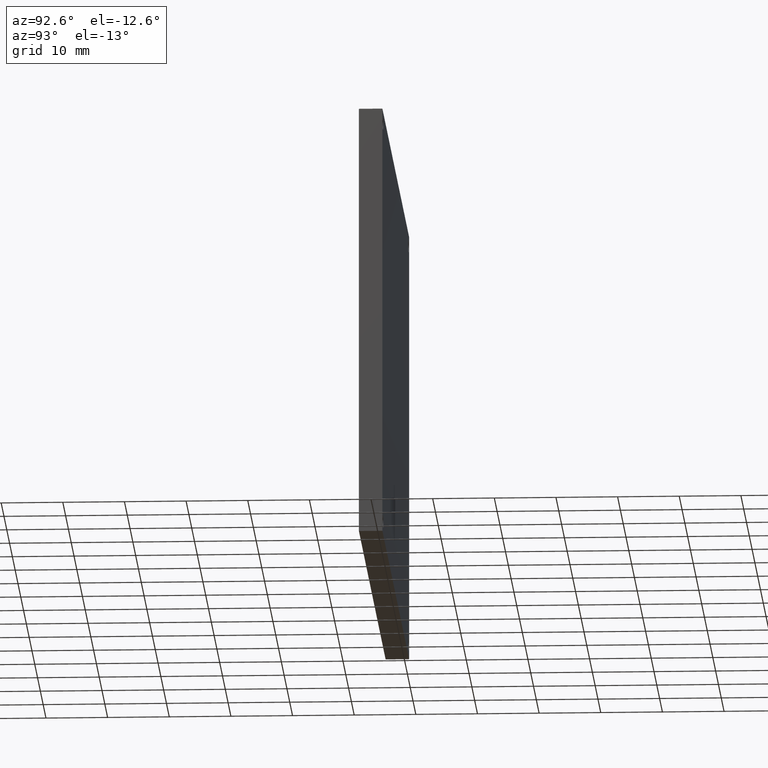
[diagram: clean part render]
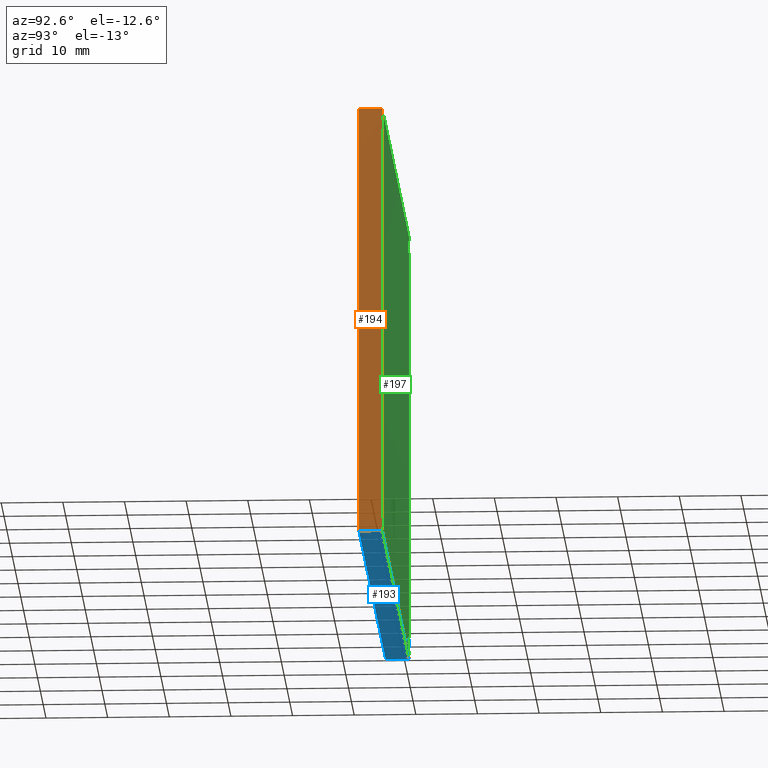
[diagram: same view with three faces highlighted in distinct colors, each labeled with its STEP entity id]
A machine part, auxiliary view with three faces highlighted in distinct colors.
Their STEP definitions:

[orange] entity #194 — the highlighted planar face has unit normal (1, 0, 0).
#24=PLANE('',#226);
#34=FACE_OUTER_BOUND('',#44,.T.);
#44=EDGE_LOOP('',(#157,#158,#159,#160));
#64=LINE('',#318,#80);
#65=LINE('',#321,#81);
#66=LINE('',#323,#82);
#67=LINE('',#324,#83);
#80=VECTOR('',#266,0.393700787401575);
#81=VECTOR('',#269,0.393700787401575);
#82=VECTOR('',#270,0.393700787401575);
#83=VECTOR('',#271,0.393700787401575);
#105=VERTEX_POINT('',#311);
#108=VERTEX_POINT('',#316);
#109=VERTEX_POINT('',#320);
#110=VERTEX_POINT('',#322);
#128=EDGE_CURVE('',#105,#108,#64,.T.);
#129=EDGE_CURVE('',#109,#105,#65,.T.);
#130=EDGE_CURVE('',#110,#108,#66,.T.);
#131=EDGE_CURVE('',#109,#110,#67,.T.);
#157=ORIENTED_EDGE('',*,*,#129,.T.);
#158=ORIENTED_EDGE('',*,*,#128,.T.);
#159=ORIENTED_EDGE('',*,*,#130,.F.);
#160=ORIENTED_EDGE('',*,*,#131,.F.);
#194=ADVANCED_FACE('',(#34),#24,.T.);
#226=AXIS2_PLACEMENT_3D('',#319,#267,#268);
#266=DIRECTION('',(0.,1.,0.));
#267=DIRECTION('center_axis',(1.,0.,0.));
#268=DIRECTION('ref_axis',(0.,0.,-1.));
#269=DIRECTION('',(0.,0.,-1.));
#270=DIRECTION('',(0.,0.,-1.));
#271=DIRECTION('',(0.,1.,0.));
#311=CARTESIAN_POINT('',(3.88,0.26,-2.88));
#316=CARTESIAN_POINT('',(3.88,0.41,-2.88));
#318=CARTESIAN_POINT('',(3.88,0.26,-2.88));
#319=CARTESIAN_POINT('Origin',(3.88,0.26,-0.12));
#320=CARTESIAN_POINT('',(3.88,0.26,-0.12));
#321=CARTESIAN_POINT('',(3.88,0.26,-0.12));
#322=CARTESIAN_POINT('',(3.88,0.41,-0.12));
#323=CARTESIAN_POINT('',(3.88,0.41,-0.12));
#324=CARTESIAN_POINT('',(3.88,0.26,-0.12));

[blue] entity #193 — the highlighted planar face has unit normal (0, 0, -1).
#23=PLANE('',#225);
#33=FACE_OUTER_BOUND('',#43,.T.);
#43=EDGE_LOOP('',(#153,#154,#155,#156));
#61=LINE('',#313,#77);
#62=LINE('',#315,#78);
#63=LINE('',#317,#79);
#64=LINE('',#318,#80);
#77=VECTOR('',#263,0.393700787401575);
#78=VECTOR('',#264,0.393700787401575);
#79=VECTOR('',#265,0.393700787401575);
#80=VECTOR('',#266,0.393700787401575);
#105=VERTEX_POINT('',#311);
#106=VERTEX_POINT('',#312);
#107=VERTEX_POINT('',#314);
#108=VERTEX_POINT('',#316);
#125=EDGE_CURVE('',#105,#106,#61,.T.);
#126=EDGE_CURVE('',#106,#107,#62,.T.);
#127=EDGE_CURVE('',#108,#107,#63,.T.);
#128=EDGE_CURVE('',#105,#108,#64,.T.);
#153=ORIENTED_EDGE('',*,*,#125,.T.);
#154=ORIENTED_EDGE('',*,*,#126,.T.);
#155=ORIENTED_EDGE('',*,*,#127,.F.);
#156=ORIENTED_EDGE('',*,*,#128,.F.);
#193=ADVANCED_FACE('',(#33),#23,.T.);
#225=AXIS2_PLACEMENT_3D('',#310,#261,#262);
#261=DIRECTION('center_axis',(9.29990806353792E-17,0.,-1.));
#262=DIRECTION('ref_axis',(-1.,0.,-9.29990806353792E-17));
#263=DIRECTION('',(-1.,0.,-9.29990806353792E-17));
#264=DIRECTION('',(0.,1.,0.));
#265=DIRECTION('',(-1.,0.,-9.29990806353792E-17));
#266=DIRECTION('',(0.,1.,0.));
#310=CARTESIAN_POINT('Origin',(3.88,0.26,-2.88));
#311=CARTESIAN_POINT('',(3.88,0.26,-2.88));
#312=CARTESIAN_POINT('',(0.12,0.26,-2.88));
#313=CARTESIAN_POINT('',(3.88,0.26,-2.88));
#314=CARTESIAN_POINT('',(0.12,0.41,-2.88));
#315=CARTESIAN_POINT('',(0.12,0.26,-2.88));
#316=CARTESIAN_POINT('',(3.88,0.41,-2.88));
#317=CARTESIAN_POINT('',(3.88,0.41,-2.88));
#318=CARTESIAN_POINT('',(3.88,0.26,-2.88));

[green] entity #197 — the highlighted planar face has unit normal (0, 1, 0).
#15=FACE_BOUND('',#48,.T.);
#16=FACE_BOUND('',#49,.T.);
#17=FACE_BOUND('',#50,.T.);
#18=FACE_BOUND('',#51,.T.);
#27=PLANE('',#229);
#37=FACE_OUTER_BOUND('',#47,.T.);
#47=EDGE_LOOP('',(#169,#170,#171,#172));
#48=EDGE_LOOP('',(#173));
#49=EDGE_LOOP('',(#174));
#50=EDGE_LOOP('',(#175));
#51=EDGE_LOOP('',(#176));
#63=LINE('',#317,#79);
#66=LINE('',#323,#82);
#69=LINE('',#329,#85);
#72=LINE('',#333,#88);
#79=VECTOR('',#265,0.393700787401575);
#82=VECTOR('',#270,0.393700787401575);
#85=VECTOR('',#275,0.393700787401575);
#88=VECTOR('',#280,0.393700787401575);
#90=CIRCLE('',#215,0.0393700787401575);
#92=CIRCLE('',#218,0.0393700787401573);
#94=CIRCLE('',#221,0.0393700787401573);
#96=CIRCLE('',#224,0.0393700787401575);
#98=VERTEX_POINT('',#289);
#100=VERTEX_POINT('',#295);
#102=VERTEX_POINT('',#301);
#104=VERTEX_POINT('',#307);
#107=VERTEX_POINT('',#314);
#108=VERTEX_POINT('',#316);
#110=VERTEX_POINT('',#322);
#112=VERTEX_POINT('',#328);
#115=EDGE_CURVE('',#98,#98,#90,.T.);
#118=EDGE_CURVE('',#100,#100,#92,.T.);
#121=EDGE_CURVE('',#102,#102,#94,.T.);
#124=EDGE_CURVE('',#104,#104,#96,.T.);
#127=EDGE_CURVE('',#108,#107,#63,.T.);
#130=EDGE_CURVE('',#110,#108,#66,.T.);
#133=EDGE_CURVE('',#112,#110,#69,.T.);
#136=EDGE_CURVE('',#107,#112,#72,.T.);
#169=ORIENTED_EDGE('',*,*,#136,.T.);
#170=ORIENTED_EDGE('',*,*,#133,.T.);
#171=ORIENTED_EDGE('',*,*,#130,.T.);
#172=ORIENTED_EDGE('',*,*,#127,.T.);
#173=ORIENTED_EDGE('',*,*,#124,.T.);
#174=ORIENTED_EDGE('',*,*,#121,.T.);
#175=ORIENTED_EDGE('',*,*,#118,.T.);
#176=ORIENTED_EDGE('',*,*,#115,.T.);
#197=ADVANCED_FACE('',(#37,#15,#16,#17,#18),#27,.T.);
#215=AXIS2_PLACEMENT_3D('',#291,#238,#239);
#218=AXIS2_PLACEMENT_3D('',#297,#245,#246);
#221=AXIS2_PLACEMENT_3D('',#303,#252,#253);
#224=AXIS2_PLACEMENT_3D('',#309,#259,#260);
#229=AXIS2_PLACEMENT_3D('',#334,#281,#282);
#238=DIRECTION('center_axis',(0.,-1.,0.));
#239=DIRECTION('ref_axis',(-1.,0.,0.));
#245=DIRECTION('center_axis',(0.,-1.,0.));
#246=DIRECTION('ref_axis',(-1.,0.,0.));
#252=DIRECTION('center_axis',(0.,-1.,0.));
#253=DIRECTION('ref_axis',(-1.,0.,0.));
#259=DIRECTION('center_axis',(0.,-1.,0.));
#260=DIRECTION('ref_axis',(-1.,0.,0.));
#265=DIRECTION('',(-1.,0.,-9.29990806353792E-17));
#270=DIRECTION('',(0.,0.,-1.));
#275=DIRECTION('',(1.,0.,-4.64995403176896E-17));
#280=DIRECTION('',(-2.37551999449066E-17,0.,1.));
#281=DIRECTION('center_axis',(0.,1.,0.));
#282=DIRECTION('ref_axis',(-1.,0.,0.));
#289=CARTESIAN_POINT('',(0.239370085123017,0.41,-2.80000008936003));
#291=CARTESIAN_POINT('Origin',(0.20000000638286,0.41,-2.80000008936003));
#295=CARTESIAN_POINT('',(3.8393700723573,0.41,-0.20000000638286));
#297=CARTESIAN_POINT('Origin',(3.79999999361714,0.41,-0.20000000638286));
#301=CARTESIAN_POINT('',(3.8393700723573,0.41,-2.80000008936003));
#303=CARTESIAN_POINT('Origin',(3.79999999361714,0.41,-2.80000008936003));
#307=CARTESIAN_POINT('',(0.239370085123017,0.41,-0.20000000638286));
#309=CARTESIAN_POINT('Origin',(0.20000000638286,0.41,-0.20000000638286));
#314=CARTESIAN_POINT('',(0.12,0.41,-2.88));
#316=CARTESIAN_POINT('',(3.88,0.41,-2.88));
#317=CARTESIAN_POINT('',(3.88,0.41,-2.88));
#322=CARTESIAN_POINT('',(3.88,0.41,-0.12));
#323=CARTESIAN_POINT('',(3.88,0.41,-0.12));
#328=CARTESIAN_POINT('',(0.12,0.41,-0.12));
#329=CARTESIAN_POINT('',(0.12,0.41,-0.12));
#333=CARTESIAN_POINT('',(0.12,0.41,-2.88));
#334=CARTESIAN_POINT('Origin',(2.,0.41,-1.5));